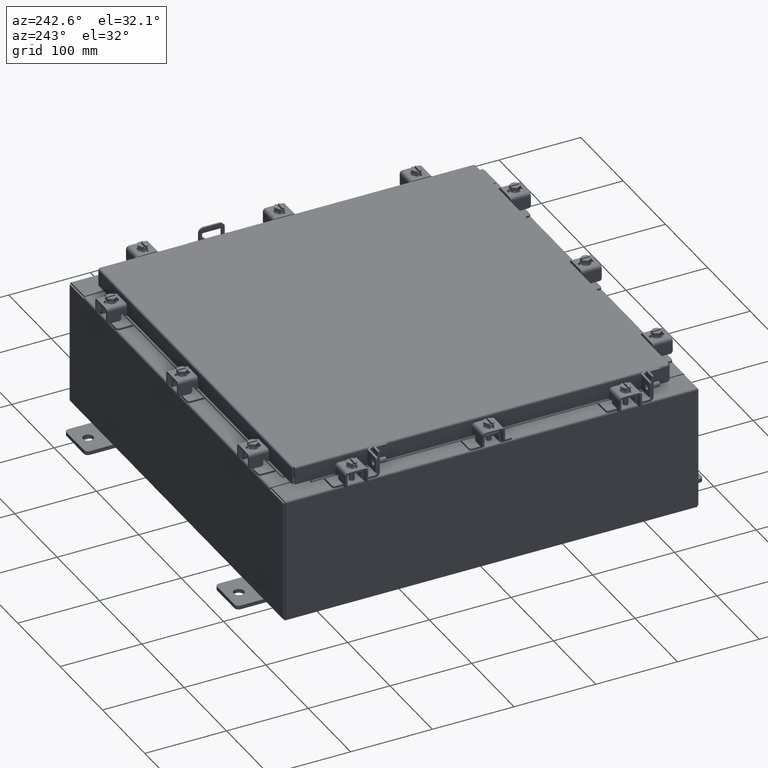
[diagram: clean part render]
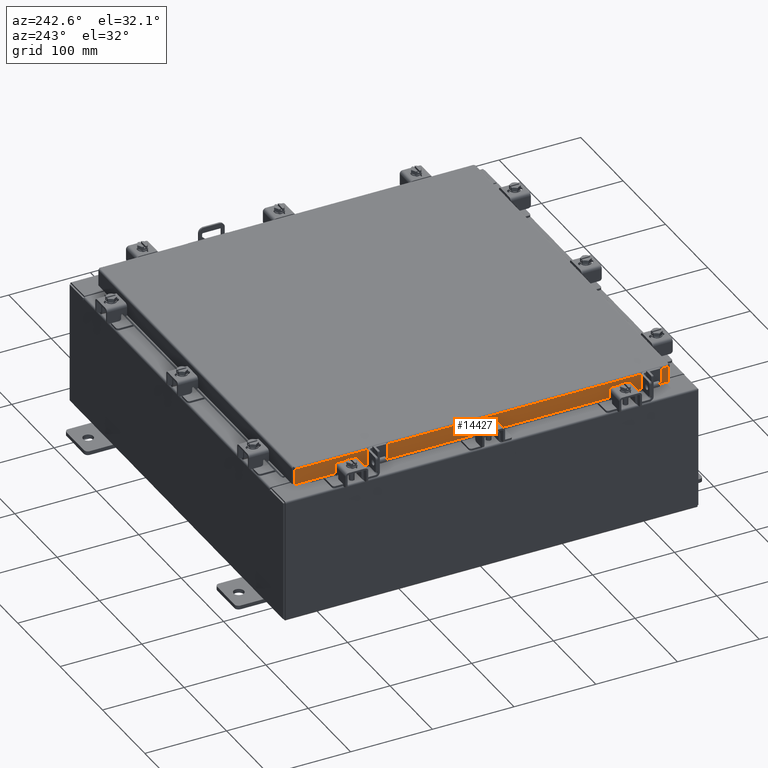
[diagram: same view with one face highlighted and labeled with its STEP entity id]
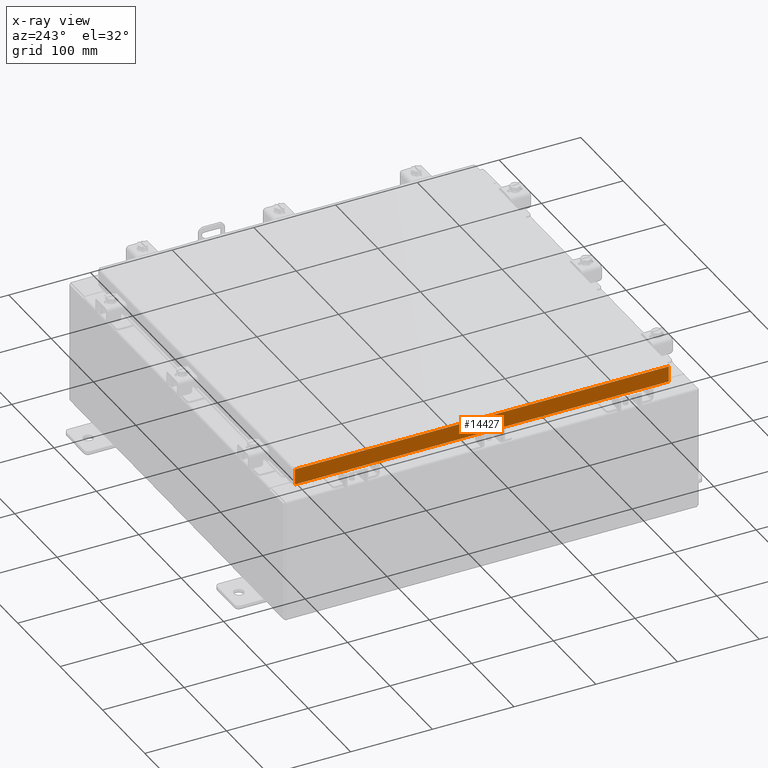
[diagram: x-ray of the same camera — body ghosted, the highlighted face saturated]
A machine part, auxiliary view. The second image highlights one B-rep face of the part: STEP entity #14427.
The next image is the same camera in x-ray: the body ghosted, the highlighted face saturated — about 0% of this face is hidden behind the body in this view.
In plain terms, the highlighted planar face has unit normal (1, 0, -0).
Its self-contained STEP definition (entity closure, byte-faithful):
#51 = DIRECTION ( 'NONE',  ( 5.080770341691952100E-031, -1.000000000000000000, 6.008022858289562200E-017 ) ) ;
#66 = LINE ( 'NONE', #16759, #18681 ) ;
#596 = CARTESIAN_POINT ( 'NONE',  ( -9.094000000000001200, -9.005157864376261800, -0.8499999999999999800 ) ) ;
#913 = VECTOR ( 'NONE', #5176, 39.37007874015748100 ) ;
#1034 = VECTOR ( 'NONE', #10495, 39.37007874015748100 ) ;
#1244 = VERTEX_POINT ( 'NONE', #19473 ) ;
#1447 = LINE ( 'NONE', #12156, #913 ) ;
#1520 = EDGE_LOOP ( 'NONE', ( #7205, #5317, #20081, #19398, #10798, #14921 ) ) ;
#1794 = VERTEX_POINT ( 'NONE', #3650 ) ;
#2547 = LINE ( 'NONE', #16351, #11833 ) ;
#2943 = DIRECTION ( 'NONE',  ( -2.818880942772360500E-015, 0.0000000000000000000, -1.000000000000000000 ) ) ;
#3496 = VECTOR ( 'NONE', #51, 39.37007874015748100 ) ;
#3650 = CARTESIAN_POINT ( 'NONE',  ( -9.093999999999999400, -9.005157864376268900, -0.08770000000000026400 ) ) ;
#5176 = DIRECTION ( 'NONE',  ( -2.818880942772360500E-015, 6.982962677686265900E-015, -1.000000000000000000 ) ) ;
#5317 = ORIENTED_EDGE ( 'NONE', *, *, #16136, .T. ) ;
#5803 = DIRECTION ( 'NONE',  ( 4.379057701015053300E-047, 1.000000000000000000, 1.201604571657912400E-016 ) ) ;
#6197 = LINE ( 'NONE', #6978, #1034 ) ;
#6237 = DIRECTION ( 'NONE',  ( -0.0000000000000000000, 1.000000000000000000, -0.0000000000000000000 ) ) ;
#6978 = CARTESIAN_POINT ( 'NONE',  ( -9.094000000000001200, -9.093999999999999400, -0.8499999999999999800 ) ) ;
#7005 = VECTOR ( 'NONE', #14202, 39.37007874015748100 ) ;
#7205 = ORIENTED_EDGE ( 'NONE', *, *, #14644, .F. ) ;
#8014 = VERTEX_POINT ( 'NONE', #18036 ) ;
#8657 = EDGE_CURVE ( 'NONE', #8014, #20608, #66, .T. ) ;
#8732 = VERTEX_POINT ( 'NONE', #11600 ) ;
#10495 = DIRECTION ( 'NONE',  ( 4.379057701015053300E-047, 1.000000000000000000, 1.201604571657912400E-016 ) ) ;
#10708 = CARTESIAN_POINT ( 'NONE',  ( -9.093999999999999400, -9.005157864376267100, -0.07470000000000015500 ) ) ;
#10798 = ORIENTED_EDGE ( 'NONE', *, *, #11996, .F. ) ;
#11286 = AXIS2_PLACEMENT_3D ( 'NONE', #18652, #13469, #2943 ) ;
#11447 = VERTEX_POINT ( 'NONE', #596 ) ;
#11600 = CARTESIAN_POINT ( 'NONE',  ( -9.093999999999999400, 9.005157864376267100, -0.08770000000000136000 ) ) ;
#11833 = VECTOR ( 'NONE', #5803, 39.37007874015748100 ) ;
#11996 = EDGE_CURVE ( 'NONE', #11447, #8014, #2547, .T. ) ;
#12156 = CARTESIAN_POINT ( 'NONE',  ( -9.093999999999999400, 9.005157864376267100, 8.851187499472213200E-014 ) ) ;
#13153 = CARTESIAN_POINT ( 'NONE',  ( -9.093999999999997600, 8.255157864376267100, -0.8500000000000020900 ) ) ;
#13469 = DIRECTION ( 'NONE',  ( 1.000000000000000000, 3.387180227794634300E-031, -2.818880942772360500E-015 ) ) ;
#14202 = DIRECTION ( 'NONE',  ( -2.818880942772360500E-015, 6.982962677686265900E-015, -1.000000000000000000 ) ) ;
#14427 = ADVANCED_FACE ( 'NONE', ( #22340 ), #22105, .F. ) ;
#14644 = EDGE_CURVE ( 'NONE', #8732, #1794, #16944, .T. ) ;
#14921 = ORIENTED_EDGE ( 'NONE', *, *, #15565, .F. ) ;
#15565 = EDGE_CURVE ( 'NONE', #1794, #11447, #20959, .T. ) ;
#16136 = EDGE_CURVE ( 'NONE', #8732, #1244, #1447, .T. ) ;
#16351 = CARTESIAN_POINT ( 'NONE',  ( -9.094000000000001200, -9.093999999999999400, -0.8499999999999999800 ) ) ;
#16759 = CARTESIAN_POINT ( 'NONE',  ( -9.093999999999997600, -8.255157864376263500, -0.8500000000000020900 ) ) ;
#16944 = LINE ( 'NONE', #20972, #3496 ) ;
#18036 = CARTESIAN_POINT ( 'NONE',  ( -9.093999999999997600, -8.255157864376261800, -0.8500000000000020900 ) ) ;
#18652 = CARTESIAN_POINT ( 'NONE',  ( -9.093999999999999400, 0.0000000000000000000, 2.622574073917692700E-014 ) ) ;
#18681 = VECTOR ( 'NONE', #6237, 39.37007874015748100 ) ;
#19398 = ORIENTED_EDGE ( 'NONE', *, *, #8657, .F. ) ;
#19473 = CARTESIAN_POINT ( 'NONE',  ( -9.094000000000001200, 9.005157864376274200, -0.8499999999999977600 ) ) ;
#20081 = ORIENTED_EDGE ( 'NONE', *, *, #21462, .F. ) ;
#20608 = VERTEX_POINT ( 'NONE', #13153 ) ;
#20959 = LINE ( 'NONE', #10708, #7005 ) ;
#20972 = CARTESIAN_POINT ( 'NONE',  ( -9.093999999999999400, -9.093999999999999400, -0.08770000000000026400 ) ) ;
#21462 = EDGE_CURVE ( 'NONE', #20608, #1244, #6197, .T. ) ;
#22105 = PLANE ( 'NONE',  #11286 ) ;
#22340 = FACE_OUTER_BOUND ( 'NONE', #1520, .T. ) ;